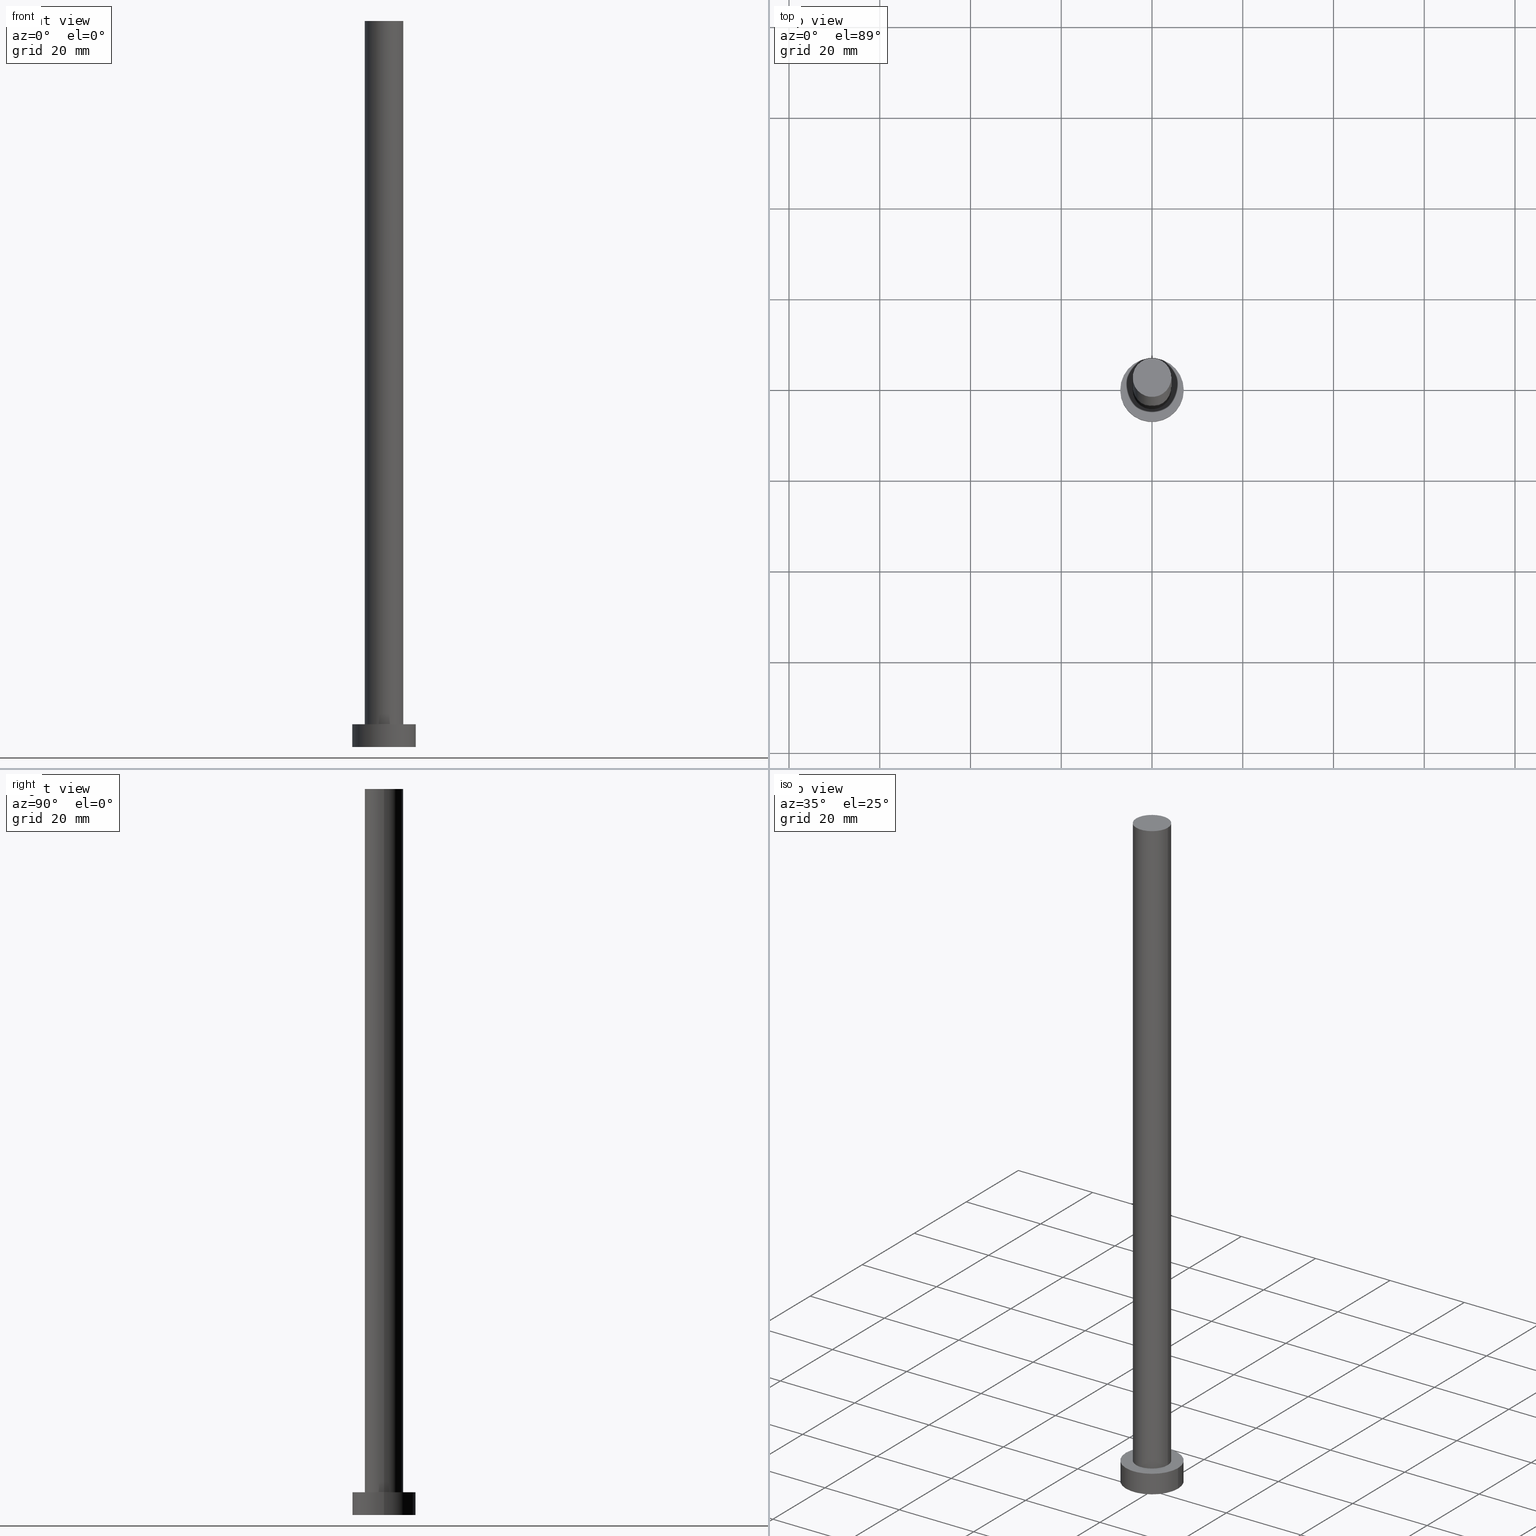
[diagram: canonical four-view strip — front | top / right | iso, engineering-drawing reading convention]
A machine part, canonical four-view strip (front | top / right | iso — engineering-drawing reading convention). The complete STEP part file that produces these views, byte-faithful:
ISO-10303-21;
HEADER;
FILE_DESCRIPTION (( 'STEP AP203' ),
    '1' );
FILE_NAME ('883a.STEP',
    '2023-02-13T13:53:34',
    ( '' ),
    ( '' ),
    'SwSTEP 2.0',
    'SolidWorks 2019',
    '' );
FILE_SCHEMA (( 'CONFIG_CONTROL_DESIGN' ));
ENDSEC;

DATA;
#1 = EDGE_LOOP ( 'NONE', ( #154, #214 ) ) ;
#2 = EDGE_CURVE ( 'NONE', #117, #233, #202, .T. ) ;
#3 = EDGE_LOOP ( 'NONE', ( #37, #138 ) ) ;
#4 = DIRECTION ( 'NONE',  ( 1.000000000000000000, 0.000000000000000000, -0.000000000000000000 ) ) ;
#5 = DATE_AND_TIME ( #171, #181 ) ;
#6 = ORIENTED_EDGE ( 'NONE', *, *, #226, .T. ) ;
#7 = VECTOR ( 'NONE', #246, 1000.000000000000000 ) ;
#8 = DIRECTION ( 'NONE',  ( 1.000000000000000000, 0.000000000000000000, 0.000000000000000000 ) ) ;
#9 = PERSON_AND_ORGANIZATION_ROLE ( 'creator' ) ;
#10 = AXIS2_PLACEMENT_3D ( 'NONE', #176, #51, #67 ) ;
#11 = DIRECTION ( 'NONE',  ( 0.000000000000000000, 0.000000000000000000, 1.000000000000000000 ) ) ;
#12 = APPROVAL_DATE_TIME ( #30, #139 ) ;
#13 = DIRECTION ( 'NONE',  ( 0.000000000000000000, 0.000000000000000000, 1.000000000000000000 ) ) ;
#14 = PERSON_AND_ORGANIZATION ( #114, #143 ) ;
#15 = CARTESIAN_POINT ( 'NONE',  ( 0.000000000000000000, 0.000000000000000000, 5.000000000000000000 ) ) ;
#16 = EDGE_CURVE ( 'NONE', #233, #117, #46, .T. ) ;
#17 = AXIS2_PLACEMENT_3D ( 'NONE', #147, #197, #34 ) ;
#18 = CARTESIAN_POINT ( 'NONE',  ( -7.000000000000000000, 0.000000000000000000, 5.000000000000000000 ) ) ;
#19 = PLANE ( 'NONE',  #252 ) ;
#20 = EDGE_LOOP ( 'NONE', ( #22, #62, #79, #6 ) ) ;
#21 = DIRECTION ( 'NONE',  ( 1.000000000000000000, 0.000000000000000000, 0.000000000000000000 ) ) ;
#22 = ORIENTED_EDGE ( 'NONE', *, *, #71, .F. ) ;
#23 = ORIENTED_EDGE ( 'NONE', *, *, #16, .F. ) ;
#24 = COORDINATED_UNIVERSAL_TIME_OFFSET ( 1, 0, .AHEAD. ) ;
#25 = CARTESIAN_POINT ( 'NONE',  ( 0.000000000000000000, 0.000000000000000000, 160.0000000000000000 ) ) ;
#26 = PERSON_AND_ORGANIZATION ( #114, #143 ) ;
#27 = ADVANCED_FACE ( 'NONE', ( #83 ), #38, .T. ) ;
#28 = LINE ( 'NONE', #162, #7 ) ;
#29 = FACE_OUTER_BOUND ( 'NONE', #151, .T. ) ;
#30 = DATE_AND_TIME ( #183, #208 ) ;
#31 = CARTESIAN_POINT ( 'NONE',  ( -4.250000000000000000, 0.000000000000000000, 5.000000000000000000 ) ) ;
#32 = AXIS2_PLACEMENT_3D ( 'NONE', #25, #146, #125 ) ;
#33 = DIRECTION ( 'NONE',  ( -0.000000000000000000, -0.000000000000000000, -1.000000000000000000 ) ) ;
#34 = DIRECTION ( 'NONE',  ( -1.000000000000000000, 0.000000000000000000, 0.000000000000000000 ) ) ;
#35 =( LENGTH_UNIT ( ) NAMED_UNIT ( * ) SI_UNIT ( .MILLI., .METRE. ) );
#36 = AXIS2_PLACEMENT_3D ( 'NONE', #80, #230, #152 ) ;
#37 = ORIENTED_EDGE ( 'NONE', *, *, #226, .F. ) ;
#38 = PLANE ( 'NONE',  #75 ) ;
#39 = CARTESIAN_POINT ( 'NONE',  ( 0.000000000000000000, 0.000000000000000000, 0.000000000000000000 ) ) ;
#40 = DIRECTION ( 'NONE',  ( 1.000000000000000000, 0.000000000000000000, 0.000000000000000000 ) ) ;
#41 = ORIENTED_EDGE ( 'NONE', *, *, #16, .T. ) ;
#42 = SECURITY_CLASSIFICATION ( '', '', #156 ) ;
#43 = ORIENTED_EDGE ( 'NONE', *, *, #134, .T. ) ;
#44 = ADVANCED_BREP_SHAPE_REPRESENTATION ( '883a', ( #186, #218 ), #92 ) ;
#45 = FACE_OUTER_BOUND ( 'NONE', #133, .T. ) ;
#46 = CIRCLE ( 'NONE', #59, 4.250000000000000000 ) ;
#47 = CARTESIAN_POINT ( 'NONE',  ( 0.000000000000000000, 0.000000000000000000, 5.000000000000000000 ) ) ;
#48 = APPROVAL_ROLE ( '' ) ;
#49 = EDGE_CURVE ( 'NONE', #195, #135, #164, .T. ) ;
#50 = DIRECTION ( 'NONE',  ( 1.000000000000000000, 0.000000000000000000, -0.000000000000000000 ) ) ;
#51 = DIRECTION ( 'NONE',  ( 0.000000000000000000, 0.000000000000000000, 1.000000000000000000 ) ) ;
#52 = LINE ( 'NONE', #121, #115 ) ;
#53 = CC_DESIGN_PERSON_AND_ORGANIZATION_ASSIGNMENT ( #241, #87, ( #42 ) ) ;
#54 = PRODUCT_RELATED_PRODUCT_CATEGORY ( 'detail', '', ( #255 ) ) ;
#55 = MECHANICAL_CONTEXT ( 'NONE', #248, 'mechanical' ) ;
#56 = CC_DESIGN_SECURITY_CLASSIFICATION ( #42, ( #123 ) ) ;
#57 = EDGE_LOOP ( 'NONE', ( #190, #43, #41, #169 ) ) ;
#58 = EDGE_LOOP ( 'NONE', ( #82, #23 ) ) ;
#59 = AXIS2_PLACEMENT_3D ( 'NONE', #210, #136, #8 ) ;
#60 = DIRECTION ( 'NONE',  ( 0.000000000000000000, 0.000000000000000000, 1.000000000000000000 ) ) ;
#61 = APPROVAL_DATE_TIME ( #5, #149 ) ;
#62 = ORIENTED_EDGE ( 'NONE', *, *, #85, .F. ) ;
#63 = CARTESIAN_POINT ( 'NONE',  ( 7.000000000000000000, 8.572527594031473190E-16, 5.000000000000000000 ) ) ;
#64 = DIRECTION ( 'NONE',  ( 0.000000000000000000, 0.000000000000000000, 1.000000000000000000 ) ) ;
#65 = ADVANCED_FACE ( 'NONE', ( #119 ), #236, .T. ) ;
#66 = DATE_TIME_ROLE ( 'classification_date' ) ;
#67 = DIRECTION ( 'NONE',  ( 1.000000000000000000, 0.000000000000000000, -0.000000000000000000 ) ) ;
#68 = AXIS2_PLACEMENT_3D ( 'NONE', #203, #11, #110 ) ;
#69 = DIRECTION ( 'NONE',  ( 1.000000000000000000, 0.000000000000000000, 0.000000000000000000 ) ) ;
#70 = CARTESIAN_POINT ( 'NONE',  ( -4.250000000000000000, 0.000000000000000000, 160.0000000000000000 ) ) ;
#71 = EDGE_CURVE ( 'NONE', #120, #196, #155, .T. ) ;
#72 = CIRCLE ( 'NONE', #253, 7.000000000000000000 ) ;
#73 = APPROVAL_ROLE ( '' ) ;
#74 = CC_DESIGN_DATE_AND_TIME_ASSIGNMENT ( #243, #66, ( #42 ) ) ;
#75 = AXIS2_PLACEMENT_3D ( 'NONE', #100, #213, #4 ) ;
#76 = CC_DESIGN_APPROVAL ( #149, ( #234 ) ) ;
#77 = CIRCLE ( 'NONE', #221, 4.250000000000000000 ) ;
#78 = ADVANCED_FACE ( 'NONE', ( #45 ), #201, .T. ) ;
#79 = ORIENTED_EDGE ( 'NONE', *, *, #105, .T. ) ;
#80 = CARTESIAN_POINT ( 'NONE',  ( 0.000000000000000000, 0.000000000000000000, 160.0000000000000000 ) ) ;
#81 = AXIS2_PLACEMENT_3D ( 'NONE', #86, #112, #220 ) ;
#82 = ORIENTED_EDGE ( 'NONE', *, *, #2, .F. ) ;
#83 = FACE_OUTER_BOUND ( 'NONE', #1, .T. ) ;
#84 = PERSON_AND_ORGANIZATION_ROLE ( 'design_supplier' ) ;
#85 = EDGE_CURVE ( 'NONE', #101, #120, #153, .T. ) ;
#86 = CARTESIAN_POINT ( 'NONE',  ( 0.000000000000000000, 0.000000000000000000, 160.0000000000000000 ) ) ;
#87 = PERSON_AND_ORGANIZATION_ROLE ( 'classification_officer' ) ;
#88 = DIRECTION ( 'NONE',  ( 1.000000000000000000, 0.000000000000000000, 0.000000000000000000 ) ) ;
#89 = LOCAL_TIME ( 14, 53, 34.00000000000000000, #166 ) ;
#90 = DIRECTION ( 'NONE',  ( 0.000000000000000000, 0.000000000000000000, 1.000000000000000000 ) ) ;
#91 = CALENDAR_DATE ( 2023, 13, 2 ) ;
#92 =( GEOMETRIC_REPRESENTATION_CONTEXT ( 3 ) GLOBAL_UNCERTAINTY_ASSIGNED_CONTEXT ( ( #189 ) ) GLOBAL_UNIT_ASSIGNED_CONTEXT ( ( #35, #129, #187 ) ) REPRESENTATION_CONTEXT ( 'NONE', 'WORKASPACE' ) );
#93 = DESIGN_CONTEXT ( 'detailed design', #170, 'design' ) ;
#94 = EDGE_CURVE ( 'NONE', #135, #195, #77, .T. ) ;
#95 = ORIENTED_EDGE ( 'NONE', *, *, #2, .T. ) ;
#96 = AXIS2_PLACEMENT_3D ( 'NONE', #126, #90, #240 ) ;
#97 = ORIENTED_EDGE ( 'NONE', *, *, #105, .F. ) ;
#98 = AXIS2_PLACEMENT_3D ( 'NONE', #47, #144, #219 ) ;
#99 = CC_DESIGN_PERSON_AND_ORGANIZATION_ASSIGNMENT ( #137, #173, ( #234 ) ) ;
#100 = CARTESIAN_POINT ( 'NONE',  ( 0.000000000000000000, 0.000000000000000000, 160.0000000000000000 ) ) ;
#101 = VERTEX_POINT ( 'NONE', #18 ) ;
#102 = APPROVAL_STATUS ( 'not_yet_approved' ) ;
#103 = ORIENTED_EDGE ( 'NONE', *, *, #212, .T. ) ;
#104 = FACE_OUTER_BOUND ( 'NONE', #3, .T. ) ;
#105 = EDGE_CURVE ( 'NONE', #101, #211, #52, .T. ) ;
#106 = CARTESIAN_POINT ( 'NONE',  ( 0.000000000000000000, 0.000000000000000000, 160.0000000000000000 ) ) ;
#107 = CALENDAR_DATE ( 2023, 13, 2 ) ;
#108 = CARTESIAN_POINT ( 'NONE',  ( 7.000000000000000000, 8.572527594031473190E-16, 5.000000000000000000 ) ) ;
#109 = VECTOR ( 'NONE', #159, 1000.000000000000000 ) ;
#110 = DIRECTION ( 'NONE',  ( 1.000000000000000000, 0.000000000000000000, 0.000000000000000000 ) ) ;
#111 = APPROVAL_STATUS ( 'not_yet_approved' ) ;
#112 = DIRECTION ( 'NONE',  ( -0.000000000000000000, -0.000000000000000000, -1.000000000000000000 ) ) ;
#113 = PERSON_AND_ORGANIZATION ( #114, #143 ) ;
#114 = PERSON ( 'NEUR�EN�', 'NEUR�EN�', 'NEUR�EN�', ('NEUR�EN�'), ('NEUR�EN�'), ('NEUR�EN�') ) ;
#115 = VECTOR ( 'NONE', #178, 1000.000000000000000 ) ;
#116 = EDGE_CURVE ( 'NONE', #195, #117, #28, .T. ) ;
#117 = VERTEX_POINT ( 'NONE', #31 ) ;
#118 = PERSON_AND_ORGANIZATION ( #114, #143 ) ;
#119 = FACE_OUTER_BOUND ( 'NONE', #57, .T. ) ;
#120 = VERTEX_POINT ( 'NONE', #63 ) ;
#121 = CARTESIAN_POINT ( 'NONE',  ( -7.000000000000000000, 0.000000000000000000, 5.000000000000000000 ) ) ;
#122 = CC_DESIGN_PERSON_AND_ORGANIZATION_ASSIGNMENT ( #251, #84, ( #123 ) ) ;
#123 = PRODUCT_DEFINITION_FORMATION_WITH_SPECIFIED_SOURCE ( 'LIBOVOLN�', '', #255, .NOT_KNOWN. ) ;
#124 = FACE_BOUND ( 'NONE', #58, .T. ) ;
#125 = DIRECTION ( 'NONE',  ( -1.000000000000000000, 0.000000000000000000, 0.000000000000000000 ) ) ;
#126 = CARTESIAN_POINT ( 'NONE',  ( 0.000000000000000000, 0.000000000000000000, 5.000000000000000000 ) ) ;
#127 = DATE_TIME_ROLE ( 'creation_date' ) ;
#128 = CARTESIAN_POINT ( 'NONE',  ( 0.000000000000000000, 0.000000000000000000, 0.000000000000000000 ) ) ;
#129 =( NAMED_UNIT ( * ) PLANE_ANGLE_UNIT ( ) SI_UNIT ( $, .RADIAN. ) );
#130 = APPROVAL_DATE_TIME ( #165, #185 ) ;
#131 = CLOSED_SHELL ( 'NONE', ( #65, #229, #198, #254, #209, #78, #27 ) ) ;
#132 = ORIENTED_EDGE ( 'NONE', *, *, #116, .T. ) ;
#133 = EDGE_LOOP ( 'NONE', ( #150, #238, #132, #95 ) ) ;
#134 = EDGE_CURVE ( 'NONE', #135, #233, #242, .T. ) ;
#135 = VERTEX_POINT ( 'NONE', #157 ) ;
#136 = DIRECTION ( 'NONE',  ( 0.000000000000000000, 0.000000000000000000, 1.000000000000000000 ) ) ;
#137 = PERSON_AND_ORGANIZATION ( #114, #143 ) ;
#138 = ORIENTED_EDGE ( 'NONE', *, *, #167, .F. ) ;
#139 = APPROVAL ( #111, 'NEUR�EN�' ) ;
#140 = CARTESIAN_POINT ( 'NONE',  ( 4.250000000000000000, 5.204748896376250699E-16, 160.0000000000000000 ) ) ;
#141 = COORDINATED_UNIVERSAL_TIME_OFFSET ( 1, 0, .AHEAD. ) ;
#142 = DIRECTION ( 'NONE',  ( 0.000000000000000000, 0.000000000000000000, 1.000000000000000000 ) ) ;
#143 = ORGANIZATION ( 'NEUR�EN�', 'NEUR�EN�', '' ) ;
#144 = DIRECTION ( 'NONE',  ( -0.000000000000000000, -0.000000000000000000, -1.000000000000000000 ) ) ;
#145 = CC_DESIGN_PERSON_AND_ORGANIZATION_ASSIGNMENT ( #118, #237, ( #255 ) ) ;
#146 = DIRECTION ( 'NONE',  ( -0.000000000000000000, -0.000000000000000000, -1.000000000000000000 ) ) ;
#147 = CARTESIAN_POINT ( 'NONE',  ( 0.000000000000000000, 0.000000000000000000, 5.000000000000000000 ) ) ;
#148 = AXIS2_PLACEMENT_3D ( 'NONE', #174, #60, #40 ) ;
#149 = APPROVAL ( #102, 'NEUR�EN�' ) ;
#150 = ORIENTED_EDGE ( 'NONE', *, *, #134, .F. ) ;
#151 = EDGE_LOOP ( 'NONE', ( #168, #103 ) ) ;
#152 = DIRECTION ( 'NONE',  ( 1.000000000000000000, 0.000000000000000000, 0.000000000000000000 ) ) ;
#153 = CIRCLE ( 'NONE', #96, 7.000000000000000000 ) ;
#154 = ORIENTED_EDGE ( 'NONE', *, *, #49, .T. ) ;
#155 = LINE ( 'NONE', #108, #109 ) ;
#156 = SECURITY_CLASSIFICATION_LEVEL ( 'unclassified' ) ;
#157 = CARTESIAN_POINT ( 'NONE',  ( 4.250000000000000000, 5.204748896376250699E-16, 160.0000000000000000 ) ) ;
#158 = COORDINATED_UNIVERSAL_TIME_OFFSET ( 1, 0, .AHEAD. ) ;
#159 = DIRECTION ( 'NONE',  ( -0.000000000000000000, -0.000000000000000000, -1.000000000000000000 ) ) ;
#160 = CIRCLE ( 'NONE', #227, 7.000000000000000000 ) ;
#161 = CARTESIAN_POINT ( 'NONE',  ( -7.000000000000000000, 0.000000000000000000, 0.000000000000000000 ) ) ;
#162 = CARTESIAN_POINT ( 'NONE',  ( -4.250000000000000000, 0.000000000000000000, 160.0000000000000000 ) ) ;
#163 = PRODUCT_DEFINITION_SHAPE ( 'NONE', 'NONE',  #234 ) ;
#164 = CIRCLE ( 'NONE', #36, 4.250000000000000000 ) ;
#165 = DATE_AND_TIME ( #91, #89 ) ;
#166 = COORDINATED_UNIVERSAL_TIME_OFFSET ( 1, 0, .AHEAD. ) ;
#167 = EDGE_CURVE ( 'NONE', #196, #211, #160, .T. ) ;
#168 = ORIENTED_EDGE ( 'NONE', *, *, #85, .T. ) ;
#169 = ORIENTED_EDGE ( 'NONE', *, *, #116, .F. ) ;
#170 = APPLICATION_CONTEXT ( 'configuration controlled 3d designs of mechanical parts and assemblies' ) ;
#171 = CALENDAR_DATE ( 2023, 13, 2 ) ;
#172 = EDGE_LOOP ( 'NONE', ( #188, #232, #192, #97 ) ) ;
#173 = PERSON_AND_ORGANIZATION_ROLE ( 'creator' ) ;
#174 = CARTESIAN_POINT ( 'NONE',  ( 0.000000000000000000, 0.000000000000000000, 5.000000000000000000 ) ) ;
#175 = APPROVAL_PERSON_ORGANIZATION ( #14, #185, #73 ) ;
#176 = CARTESIAN_POINT ( 'NONE',  ( 0.000000000000000000, 0.000000000000000000, 0.000000000000000000 ) ) ;
#177 = DATE_AND_TIME ( #247, #194 ) ;
#178 = DIRECTION ( 'NONE',  ( -0.000000000000000000, -0.000000000000000000, -1.000000000000000000 ) ) ;
#179 = PERSON_AND_ORGANIZATION ( #114, #143 ) ;
#180 = PLANE ( 'NONE',  #10 ) ;
#181 = LOCAL_TIME ( 14, 53, 34.00000000000000000, #24 ) ;
#182 = CYLINDRICAL_SURFACE ( 'NONE', #98, 7.000000000000000000 ) ;
#183 = CALENDAR_DATE ( 2023, 13, 2 ) ;
#184 = CARTESIAN_POINT ( 'NONE',  ( 4.250000000000000000, 5.204748896376250699E-16, 5.000000000000000000 ) ) ;
#185 = APPROVAL ( #245, 'NEUR�EN�' ) ;
#186 = MANIFOLD_SOLID_BREP ( 'P�idat vysunut�m3', #131 ) ;
#187 =( NAMED_UNIT ( * ) SI_UNIT ( $, .STERADIAN. ) SOLID_ANGLE_UNIT ( ) );
#188 = ORIENTED_EDGE ( 'NONE', *, *, #212, .F. ) ;
#189 = UNCERTAINTY_MEASURE_WITH_UNIT (LENGTH_MEASURE( 1.000000000000000082E-05 ), #35, 'distance_accuracy_value', 'NONE');
#190 = ORIENTED_EDGE ( 'NONE', *, *, #94, .F. ) ;
#191 = APPROVAL_ROLE ( '' ) ;
#192 = ORIENTED_EDGE ( 'NONE', *, *, #167, .T. ) ;
#193 = APPLICATION_PROTOCOL_DEFINITION ( 'international standard', 'config_control_design', 1994, #170 ) ;
#194 = LOCAL_TIME ( 14, 53, 34.00000000000000000, #224 ) ;
#195 = VERTEX_POINT ( 'NONE', #70 ) ;
#196 = VERTEX_POINT ( 'NONE', #215 ) ;
#197 = DIRECTION ( 'NONE',  ( -0.000000000000000000, -0.000000000000000000, -1.000000000000000000 ) ) ;
#198 = ADVANCED_FACE ( 'NONE', ( #244 ), #250, .T. ) ;
#199 = CIRCLE ( 'NONE', #68, 7.000000000000000000 ) ;
#200 = CARTESIAN_POINT ( 'NONE',  ( 0.000000000000000000, 0.000000000000000000, 0.000000000000000000 ) ) ;
#201 = CYLINDRICAL_SURFACE ( 'NONE', #81, 4.250000000000000000 ) ;
#202 = CIRCLE ( 'NONE', #148, 4.250000000000000000 ) ;
#203 = CARTESIAN_POINT ( 'NONE',  ( 0.000000000000000000, 0.000000000000000000, 5.000000000000000000 ) ) ;
#204 = LOCAL_TIME ( 14, 53, 34.00000000000000000, #158 ) ;
#205 = DIRECTION ( 'NONE',  ( 0.000000000000000000, 0.000000000000000000, 1.000000000000000000 ) ) ;
#206 = SHAPE_DEFINITION_REPRESENTATION ( #163, #44 ) ;
#207 = APPROVAL_PERSON_ORGANIZATION ( #26, #149, #191 ) ;
#208 = LOCAL_TIME ( 14, 53, 34.00000000000000000, #141 ) ;
#209 = ADVANCED_FACE ( 'NONE', ( #104 ), #180, .F. ) ;
#210 = CARTESIAN_POINT ( 'NONE',  ( 0.000000000000000000, 0.000000000000000000, 5.000000000000000000 ) ) ;
#211 = VERTEX_POINT ( 'NONE', #161 ) ;
#212 = EDGE_CURVE ( 'NONE', #120, #101, #199, .T. ) ;
#213 = DIRECTION ( 'NONE',  ( 0.000000000000000000, 0.000000000000000000, 1.000000000000000000 ) ) ;
#214 = ORIENTED_EDGE ( 'NONE', *, *, #94, .T. ) ;
#215 = CARTESIAN_POINT ( 'NONE',  ( 7.000000000000000000, 8.572527594031473190E-16, 0.000000000000000000 ) ) ;
#216 = VECTOR ( 'NONE', #33, 1000.000000000000000 ) ;
#217 = FACE_OUTER_BOUND ( 'NONE', #172, .T. ) ;
#218 = AXIS2_PLACEMENT_3D ( 'NONE', #39, #231, #21 ) ;
#219 = DIRECTION ( 'NONE',  ( -1.000000000000000000, 0.000000000000000000, 0.000000000000000000 ) ) ;
#220 = DIRECTION ( 'NONE',  ( -1.000000000000000000, 0.000000000000000000, 0.000000000000000000 ) ) ;
#221 = AXIS2_PLACEMENT_3D ( 'NONE', #106, #205, #88 ) ;
#222 = CC_DESIGN_DATE_AND_TIME_ASSIGNMENT ( #177, #127, ( #234 ) ) ;
#223 = DIRECTION ( 'NONE',  ( 1.000000000000000000, 0.000000000000000000, 0.000000000000000000 ) ) ;
#224 = COORDINATED_UNIVERSAL_TIME_OFFSET ( 1, 0, .AHEAD. ) ;
#225 = CC_DESIGN_APPROVAL ( #139, ( #123 ) ) ;
#226 = EDGE_CURVE ( 'NONE', #211, #196, #72, .T. ) ;
#227 = AXIS2_PLACEMENT_3D ( 'NONE', #128, #64, #69 ) ;
#228 = CC_DESIGN_APPROVAL ( #185, ( #42 ) ) ;
#229 = ADVANCED_FACE ( 'NONE', ( #217 ), #182, .T. ) ;
#230 = DIRECTION ( 'NONE',  ( 0.000000000000000000, 0.000000000000000000, 1.000000000000000000 ) ) ;
#231 = DIRECTION ( 'NONE',  ( 0.000000000000000000, 0.000000000000000000, 1.000000000000000000 ) ) ;
#232 = ORIENTED_EDGE ( 'NONE', *, *, #71, .T. ) ;
#233 = VERTEX_POINT ( 'NONE', #184 ) ;
#234 = PRODUCT_DEFINITION ( 'NEZN�M�', '', #123, #93 ) ;
#235 = APPLICATION_PROTOCOL_DEFINITION ( 'international standard', 'config_control_design', 1994, #248 ) ;
#236 = CYLINDRICAL_SURFACE ( 'NONE', #32, 4.250000000000000000 ) ;
#237 = PERSON_AND_ORGANIZATION_ROLE ( 'design_owner' ) ;
#238 = ORIENTED_EDGE ( 'NONE', *, *, #49, .F. ) ;
#239 = APPROVAL_PERSON_ORGANIZATION ( #113, #139, #48 ) ;
#240 = DIRECTION ( 'NONE',  ( 1.000000000000000000, 0.000000000000000000, 0.000000000000000000 ) ) ;
#241 = PERSON_AND_ORGANIZATION ( #114, #143 ) ;
#242 = LINE ( 'NONE', #140, #216 ) ;
#243 = DATE_AND_TIME ( #107, #204 ) ;
#244 = FACE_OUTER_BOUND ( 'NONE', #20, .T. ) ;
#245 = APPROVAL_STATUS ( 'not_yet_approved' ) ;
#246 = DIRECTION ( 'NONE',  ( -0.000000000000000000, -0.000000000000000000, -1.000000000000000000 ) ) ;
#247 = CALENDAR_DATE ( 2023, 13, 2 ) ;
#248 = APPLICATION_CONTEXT ( 'configuration controlled 3d designs of mechanical parts and assemblies' ) ;
#249 = CC_DESIGN_PERSON_AND_ORGANIZATION_ASSIGNMENT ( #179, #9, ( #123 ) ) ;
#250 = CYLINDRICAL_SURFACE ( 'NONE', #17, 7.000000000000000000 ) ;
#251 = PERSON_AND_ORGANIZATION ( #114, #143 ) ;
#252 = AXIS2_PLACEMENT_3D ( 'NONE', #15, #13, #50 ) ;
#253 = AXIS2_PLACEMENT_3D ( 'NONE', #200, #142, #223 ) ;
#254 = ADVANCED_FACE ( 'NONE', ( #124, #29 ), #19, .T. ) ;
#255 = PRODUCT ( '883a', '883a', '', ( #55 ) ) ;
ENDSEC;
END-ISO-10303-21;
